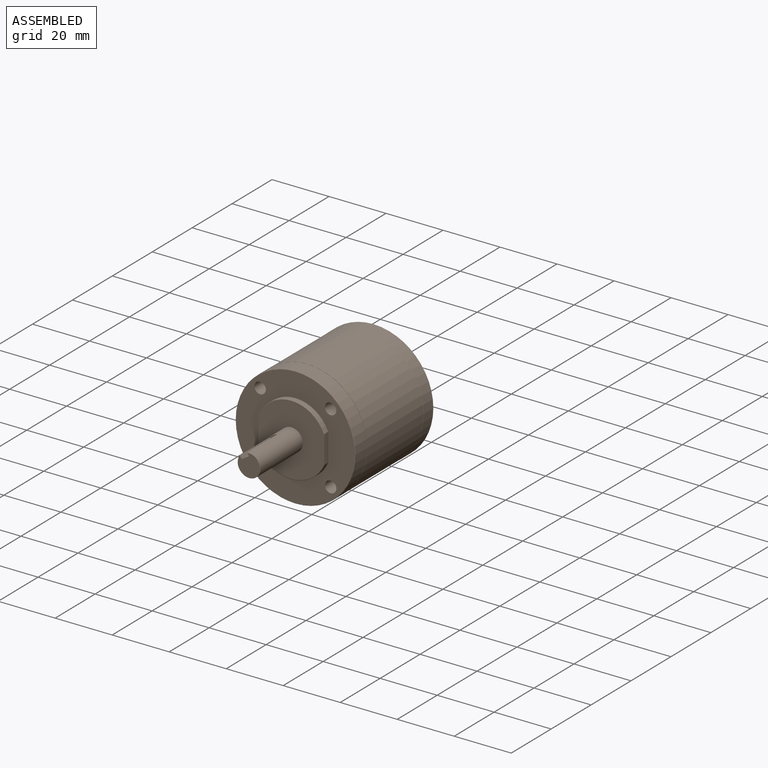
[diagram: assembled view]
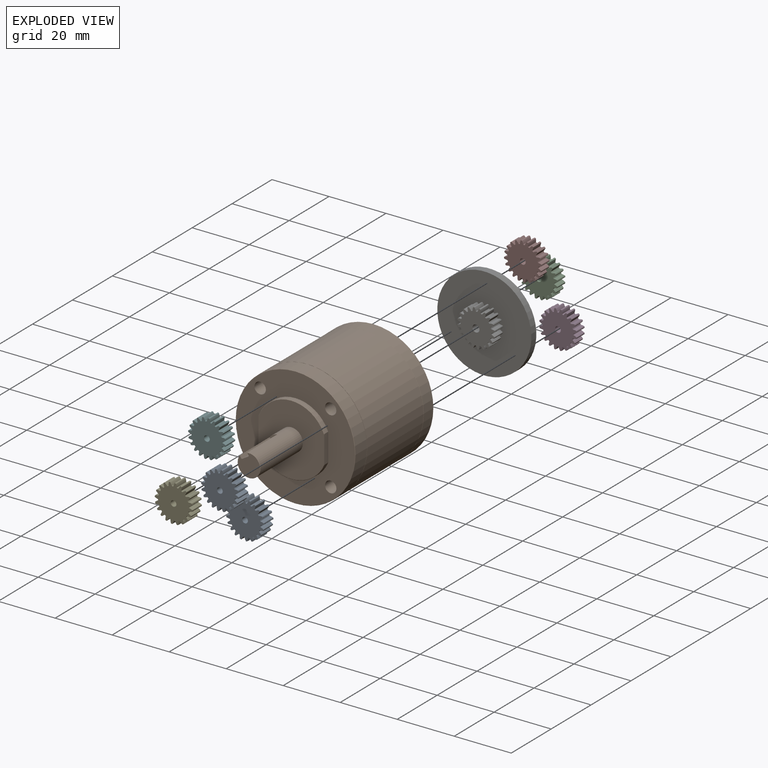
[diagram: exploded view]
GUIDED TOUR — MATED ASSEMBLY WITH SUBASSEMBLIES (Onshape document 576380d9e4b0a0decb21f6b3, AutoMate assembly 576380d9e4b0a0decb21f6b3_9d2c38b965b84d0261af29e2_1d52ac563497c145e975eeea_default)

This assembly has 12 component occurrences arranged in 9 top-level units: 8 individual components plus 1 subassembly (S0). The tour has two levels: first the top level, where each subassembly is treated as one rigid unit; then each subassembly is toured internally in its own section (nesting deeper than one subassembly level is flattened into its subassembly's section).

Components are labeled P0..P11 across the whole record; subassembly units are labeled S0..S0. A mate is a constraint between two units; its type names the relative motion it leaves free:
  CYLINDRICAL — leaves both rotation about and translation along the listed axis free,
  FASTENED — locks the two components together rigidly (no relative motion),
  PLANAR — leaves sliding in the plane through the listed point (normal = the listed direction) and rotation about that normal free,
  REVOLUTE — leaves rotation about the listed axis free (a hinge),
  SLIDER — leaves translation along the listed axis free.
Axis/direction vectors are unit vectors and 'through' points are millimeter coordinates, both in the assembly's world frame.

TOP-LEVEL MATES (between units; each subassembly's internal mates are listed in its own section)
  1. REVOLUTE "Revolute 5": P2 <-> P9, axis (0.000, -1.000, 0.000) through (-38.14, -15.95, -8.24) mm
  2. REVOLUTE "Revolute 4": P10 <-> P9, axis (0.000, -1.000, 0.000) through (-25.59, -15.95, 10.45) mm
  3. REVOLUTE "Revolute 2": S0 <-> P8, axis (0.000, 1.000, 0.000) through (-33.15, -23.75, 8.63) mm
  4. PLANAR "Planar 1": P9 <-> P11, direction (0.000, -1.000, 0.000) through (-26.46, -18.45, -2.52) mm
  5. CYLINDRICAL "Cylindrical 1": P9 <-> S0, axis (0.000, -1.000, 0.000) through (-26.46, -17.20, -2.52) mm
  6. REVOLUTE "Revolute 3": P11 <-> S0, axis (0.000, -1.000, 0.000) through (-15.32, -23.75, 4.17) mm
  7. REVOLUTE "Revolute 6": P4 <-> P9, axis (0.000, -1.000, 0.000) through (-15.67, -15.95, -9.77) mm
  8. REVOLUTE "Revolute 1": P0 <-> S0, axis (0.000, -1.000, 0.000) through (-19.77, -23.75, -13.67) mm
  9. REVOLUTE "Revolute 7": P6 <-> S0, axis (0.000, -1.000, 0.000) through (-37.61, -23.75, -9.21) mm

TOP-LEVEL ASSEMBLY ORDER
  1. S0 — the base component [order heuristic]
  2. P8 — core [order heuristic]
  3. P9 — core [order heuristic]
  4. P11 — core [order heuristic]
  5. P2 — core [order heuristic]
  6. P4 — core [order heuristic]
  7. P10 — core [order heuristic]
  8. P0 [order verified]
  9. P6 [order verified]
Order-tag legend:
  [order verified] — this step's position reverses a verified removal order: the component was checked to insert without passing through the ones already placed.
  [order heuristic] — the first 7 components form the assembly's core: parts whose collision-free extraction could not be verified, listed in mate-graph order.

Of the 12 component occurrences, 11 carry the full construction recipe — the FeatureScript program that regenerates the part's solid from scratch; the rest are supplied as boundary geometry only. Each toured unit is shown spotlighted twice — assembled, then exploded with a leader line back to its socket (green = recipe-attached component, orange = geometry-only, blue = subassembly unit; the rest desaturated gray).
NOTE — this tour is split across 3 documents so each fits a 32k-token context. This is document 1: the component sections continue in the remaining 2 documents, each repeating the header above.
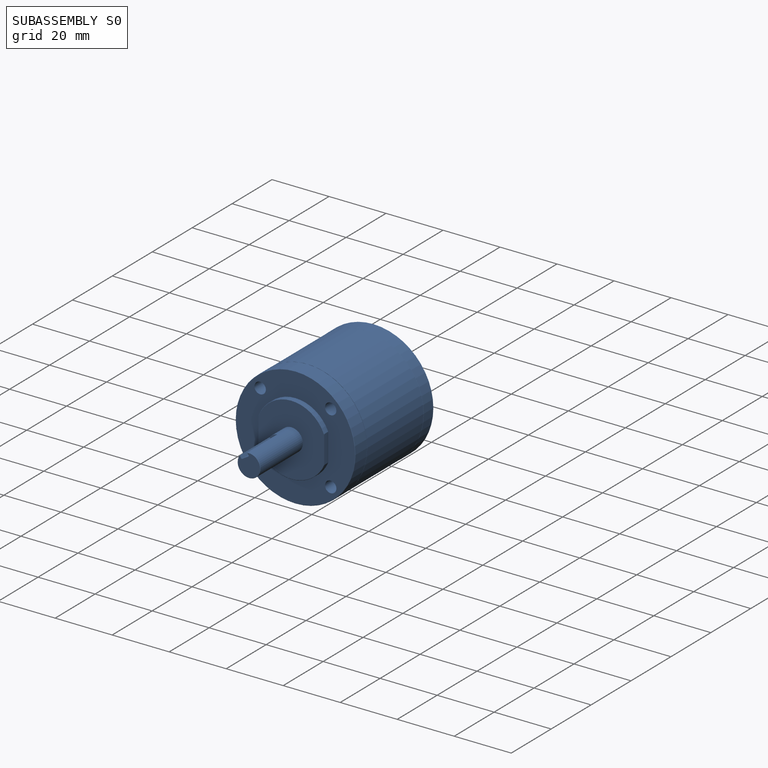
[diagram: subassembly S0 — assembled]
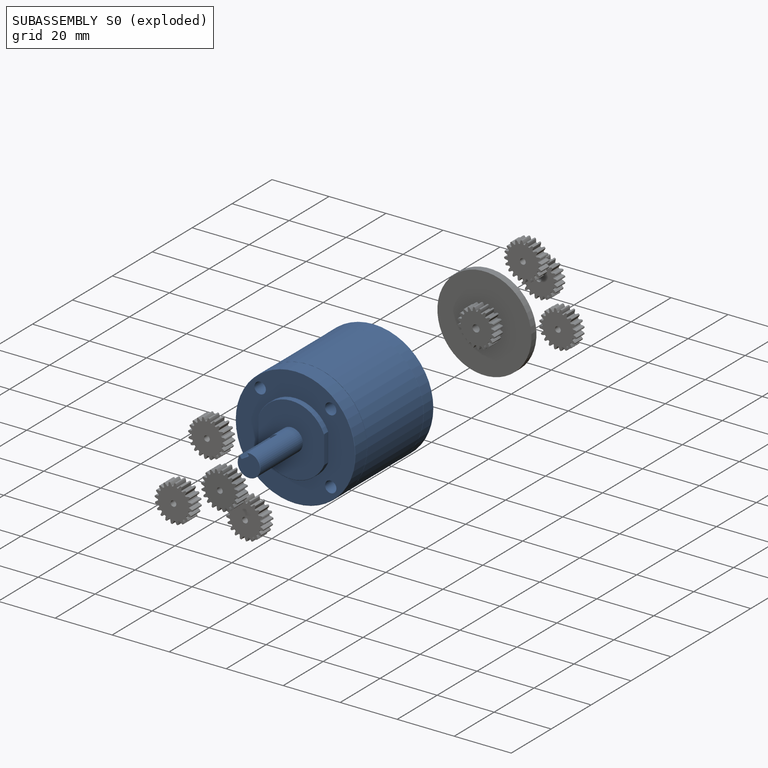
[diagram: subassembly S0 — exploded]
SUBASSEMBLY S0 — 4 components (P1, P3, P5, P7), of which 3 recipe-attached; toured below.
Held by: REVOLUTE mate "Revolute 2" to P8; CYLINDRICAL mate "Cylindrical 1" to P9; REVOLUTE mate "Revolute 3" to P11; REVOLUTE mate "Revolute 1" to P0; REVOLUTE mate "Revolute 7" to P6.
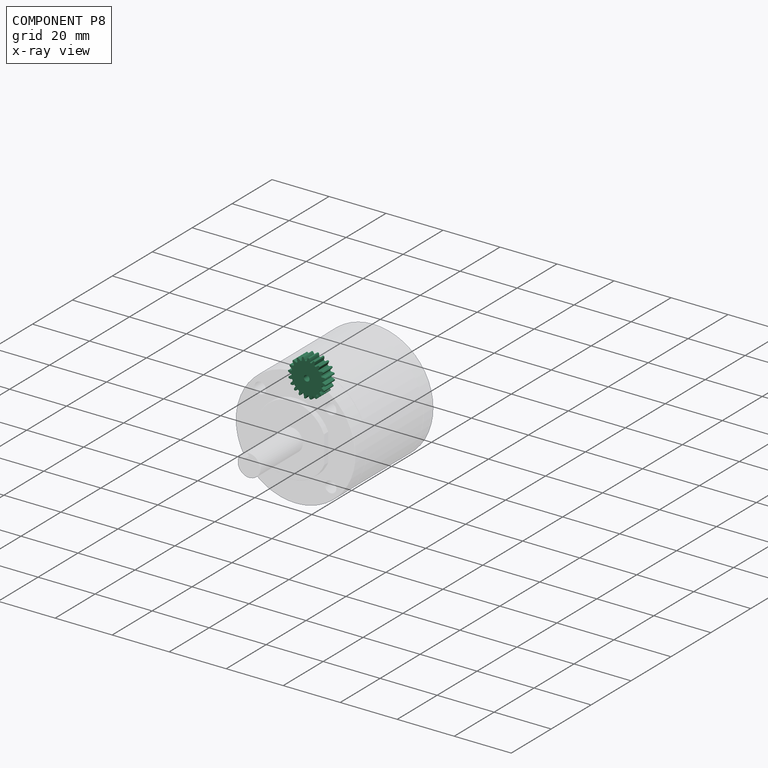
[diagram: component P8 — x-ray view]
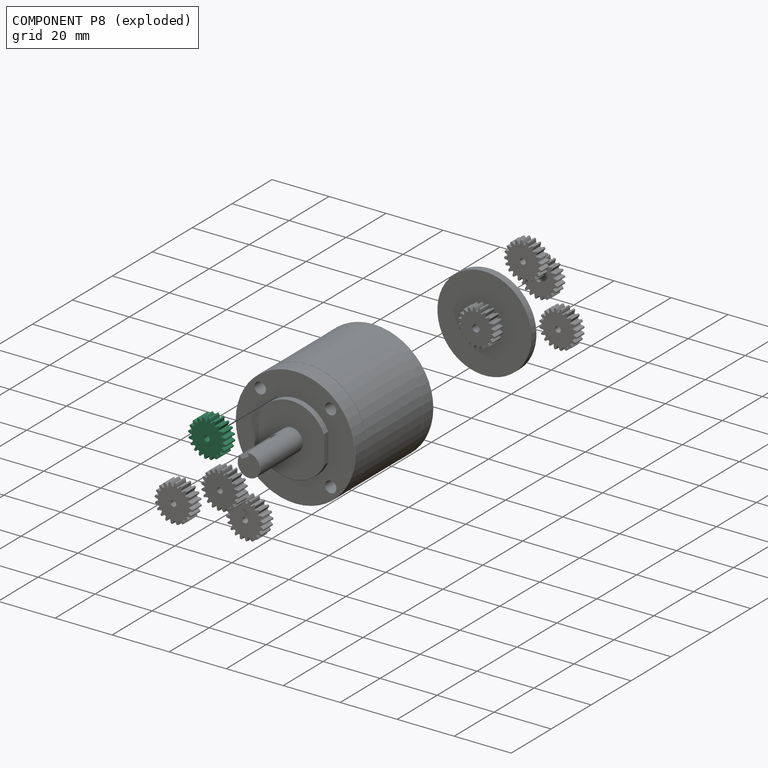
[diagram: component P8 — exploded]
COMPONENT P8 — same part as P0 (CADFS 00178052); its construction recipe is shown at P0.
Held by: REVOLUTE mate "Revolute 2" to P1.
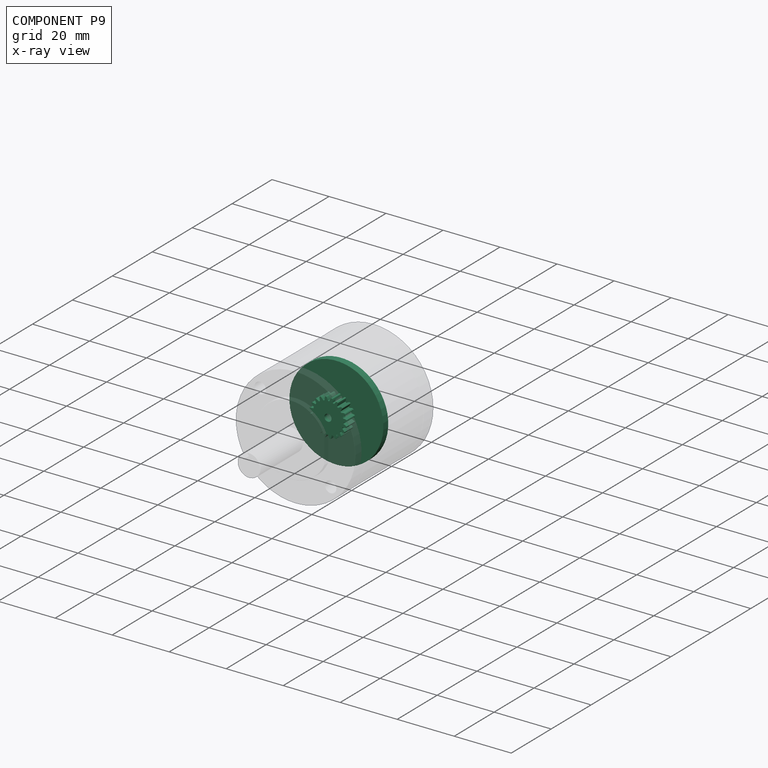
[diagram: component P9 — x-ray view]
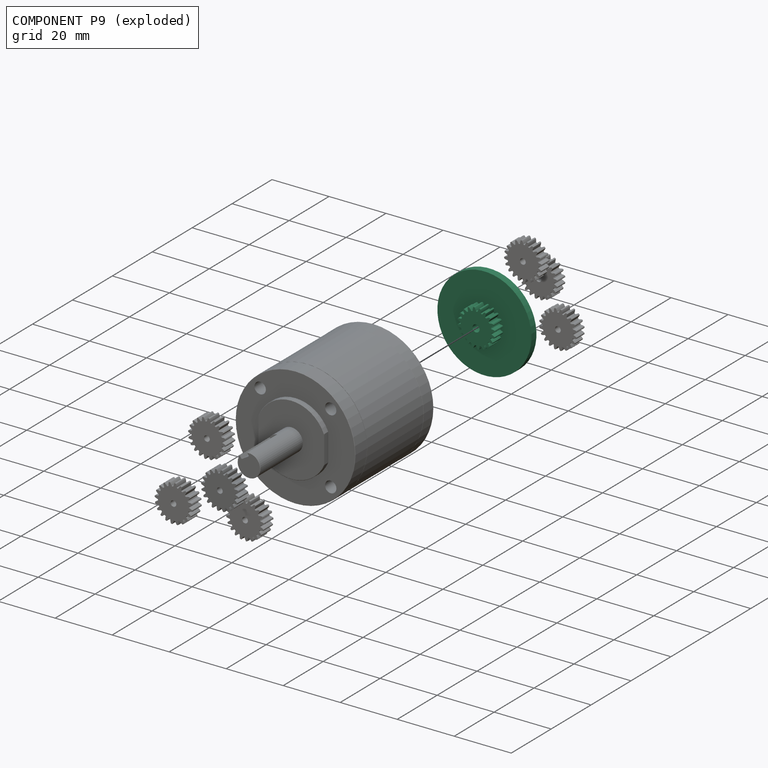
[diagram: component P9 — exploded]
COMPONENT P9 — recipe-attached (CADFS 00178049, mesh-verified: the recipe's output STEP matches this component's geometry to below the mesh-comparison resolution (tessellation chordal tolerance ~0.0718 mm)).
Held by: REVOLUTE mate "Revolute 5" to P2; REVOLUTE mate "Revolute 4" to P10; PLANAR mate "Planar 1" to P11; CYLINDRICAL mate "Cylindrical 1" to P1; REVOLUTE mate "Revolute 6" to P4.
Construction recipe (FeatureScript — the CAD program that rebuilds this solid; sketch coordinates are in the units given by the * unit suffixes, e.g. mm):

FeatureScript 1540;
import(path : "onshape/std/geometry.fs", version : "1540.0");
import(path : "onshape/std/common.fs", version : "1540.0");
const mm = millimeter;
const VERTEX = EntityType.VERTEX;
const EDGE = EntityType.EDGE;
const FACE = EntityType.FACE;
const BODY = EntityType.BODY;
function v(x, y){return vector(x, y);}
function OD(order){return orderDisambiguation(order);}
function OSD(set){return originalSetDisambiguation(set);}
function TD(topology){return topologyDisambiguation(topology);}
function TDD(query){return trueDependencyDisambiguation(query);}
function sQuery(a, b, c) {return sketchEntityQuery(a, b, c);}

annotation { "Feature Type Name" : "Feature", "Feature Type Description" : "" }
export const myFeature = defineFeature(function(context is Context, id is Id, definition is map)
    precondition{}
    {
        {
            var Q0;
            Q0=qCreatedBy(makeId("Front.planeOp"),FACE);
            var sketch = newSketch(context, id + "F0", { "sketchPlane" : qUnion([Q0])});
            skCircle(sketch, "E0", {"center": v(0, 0) * mm, "radius": 6 * mm, "construction": true});
            skCircle(sketch, "E1", {"center": v(0, 0) * mm, "radius": 5.4 * mm, "construction": true});
            skCircle(sketch, "E2", {"center": v(0, 0) * mm, "radius": 6.6 * mm, "construction": true});
            skLineSegment(sketch, "E3", {"start": v(0, 0) * mm, "end": v(0, 7.77) * mm, "construction": true});
            skPoint(sketch, "E4", {"position": v(0, 6) * mm});
            skLineSegment(sketch, "E5", {"start": v(0, 6) * mm, "end": v(-7.8, 6) * mm, "construction": true});
            skCircle(sketch, "E6.cCircle", {"center": v(0, 0) * mm, "radius": 7.77 * mm, "construction": true});
            skLineSegment(sketch, "E6.0", {"start": v(-0.61, 7.77) * mm, "end": v(0.61, 7.77) * mm, "construction": true});
            skLineSegment(sketch, "E6.1", {"start": v(0.61, 7.77) * mm, "end": v(1.82, 7.58) * mm, "construction": true});
            skLineSegment(sketch, "E6.2", {"start": v(1.82, 7.58) * mm, "end": v(2.98, 7.2) * mm, "construction": true});
            skLineSegment(sketch, "E6.3", {"start": v(2.98, 7.2) * mm, "end": v(4.07, 6.65) * mm, "construction": true});
            skLineSegment(sketch, "E6.4", {"start": v(4.07, 6.65) * mm, "end": v(5.06, 5.93) * mm, "construction": true});
            skLineSegment(sketch, "E6.5", {"start": v(5.06, 5.93) * mm, "end": v(5.93, 5.06) * mm, "construction": true});
            skLineSegment(sketch, "E6.6", {"start": v(5.93, 5.06) * mm, "end": v(6.65, 4.07) * mm, "construction": true});
            skLineSegment(sketch, "E6.7", {"start": v(6.65, 4.07) * mm, "end": v(7.2, 2.98) * mm, "construction": true});
            skLineSegment(sketch, "E6.8", {"start": v(7.2, 2.98) * mm, "end": v(7.58, 1.82) * mm, "construction": true});
            skLineSegment(sketch, "E6.9", {"start": v(7.58, 1.82) * mm, "end": v(7.77, 0.61) * mm, "construction": true});
            skLineSegment(sketch, "E6.10", {"start": v(7.77, 0.61) * mm, "end": v(7.77, -0.61) * mm, "construction": true});
            skLineSegment(sketch, "E6.11", {"start": v(7.77, -0.61) * mm, "end": v(7.58, -1.82) * mm, "construction": true});
            skLineSegment(sketch, "E6.12", {"start": v(7.58, -1.82) * mm, "end": v(7.2, -2.98) * mm, "construction": true});
            skLineSegment(sketch, "E6.13", {"start": v(7.2, -2.98) * mm, "end": v(6.65, -4.07) * mm, "construction": true});
            skLineSegment(sketch, "E6.14", {"start": v(6.65, -4.07) * mm, "end": v(5.93, -5.06) * mm, "construction": true});
            skLineSegment(sketch, "E6.15", {"start": v(5.93, -5.06) * mm, "end": v(5.06, -5.93) * mm, "construction": true});
            skLineSegment(sketch, "E6.16", {"start": v(5.06, -5.93) * mm, "end": v(4.07, -6.65) * mm, "construction": true});
            skLineSegment(sketch, "E6.17", {"start": v(4.07, -6.65) * mm, "end": v(2.98, -7.2) * mm, "construction": true});
            skLineSegment(sketch, "E6.18", {"start": v(2.98, -7.2) * mm, "end": v(1.82, -7.58) * mm, "construction": true});
            skLineSegment(sketch, "E6.19", {"start": v(1.82, -7.58) * mm, "end": v(0.61, -7.77) * mm, "construction": true});
            skLineSegment(sketch, "E6.20", {"start": v(0.61, -7.77) * mm, "end": v(-0.61, -7.77) * mm, "construction": true});
            skLineSegment(sketch, "E6.21", {"start": v(-0.61, -7.77) * mm, "end": v(-1.82, -7.58) * mm, "construction": true});
            skLineSegment(sketch, "E6.22", {"start": v(-1.82, -7.58) * mm, "end": v(-2.98, -7.2) * mm, "construction": true});
            skLineSegment(sketch, "E6.23", {"start": v(-2.98, -7.2) * mm, "end": v(-4.07, -6.65) * mm, "construction": true});
            skLineSegment(sketch, "E6.24", {"start": v(-4.07, -6.65) * mm, "end": v(-5.06, -5.93) * mm, "construction": true});
            skLineSegment(sketch, "E6.25", {"start": v(-5.06, -5.93) * mm, "end": v(-5.93, -5.06) * mm, "construction": true});
            skLineSegment(sketch, "E6.26", {"start": v(-5.93, -5.06) * mm, "end": v(-6.65, -4.07) * mm, "construction": true});
            skLineSegment(sketch, "E6.27", {"start": v(-6.65, -4.07) * mm, "end": v(-7.2, -2.98) * mm, "construction": true});
            skLineSegment(sketch, "E6.28", {"start": v(-7.2, -2.98) * mm, "end": v(-7.58, -1.82) * mm, "construction": true});
            skLineSegment(sketch, "E6.29", {"start": v(-7.58, -1.82) * mm, "end": v(-7.77, -0.61) * mm, "construction": true});
            skLineSegment(sketch, "E6.30", {"start": v(-7.77, -0.61) * mm, "end": v(-7.77, 0.61) * mm, "construction": true});
            skLineSegment(sketch, "E6.31", {"start": v(-7.77, 0.61) * mm, "end": v(-7.58, 1.82) * mm, "construction": true});
            skLineSegment(sketch, "E6.32", {"start": v(-7.58, 1.82) * mm, "end": v(-7.2, 2.98) * mm, "construction": true});
            skLineSegment(sketch, "E6.33", {"start": v(-7.2, 2.98) * mm, "end": v(-6.65, 4.07) * mm, "construction": true});
            skLineSegment(sketch, "E6.34", {"start": v(-6.65, 4.07) * mm, "end": v(-5.93, 5.06) * mm, "construction": true});
            skLineSegment(sketch, "E6.35", {"start": v(-5.93, 5.06) * mm, "end": v(-5.06, 5.93) * mm, "construction": true});
            skLineSegment(sketch, "E6.36", {"start": v(-5.06, 5.93) * mm, "end": v(-4.07, 6.65) * mm, "construction": true});
            skLineSegment(sketch, "E6.37", {"start": v(-4.07, 6.65) * mm, "end": v(-2.98, 7.2) * mm, "construction": true});
            skLineSegment(sketch, "E6.38", {"start": v(-2.98, 7.2) * mm, "end": v(-1.82, 7.58) * mm, "construction": true});
            skLineSegment(sketch, "E6.39", {"start": v(-1.82, 7.58) * mm, "end": v(-0.61, 7.77) * mm, "construction": true});
            skPoint(sketch, "E6.0.midPoint", {"position": v(0, 7.77) * mm});
            skLineSegment(sketch, "E7.0", {"start": v(0, 7.77) * mm, "end": v(1.22, 7.68) * mm, "construction": true});
            skLineSegment(sketch, "E7.1", {"start": v(1.22, 7.68) * mm, "end": v(2.4, 7.4) * mm, "construction": true});
            skLineSegment(sketch, "E7.2", {"start": v(2.4, 7.4) * mm, "end": v(3.53, 6.93) * mm, "construction": true});
            skLineSegment(sketch, "E7.3", {"start": v(3.53, 6.93) * mm, "end": v(4.57, 6.29) * mm, "construction": true});
            skLineSegment(sketch, "E7.4", {"start": v(4.57, 6.29) * mm, "end": v(5.5, 5.5) * mm, "construction": true});
            skLineSegment(sketch, "E7.5", {"start": v(5.5, 5.5) * mm, "end": v(6.29, 4.57) * mm, "construction": true});
            skLineSegment(sketch, "E7.6", {"start": v(6.29, 4.57) * mm, "end": v(6.93, 3.53) * mm, "construction": true});
            skLineSegment(sketch, "E7.7", {"start": v(6.93, 3.53) * mm, "end": v(7.4, 2.4) * mm, "construction": true});
            skLineSegment(sketch, "E7.8", {"start": v(7.4, 2.4) * mm, "end": v(7.68, 1.22) * mm, "construction": true});
            skLineSegment(sketch, "E7.9", {"start": v(7.68, 1.22) * mm, "end": v(7.77, 0) * mm, "construction": true});
            skLineSegment(sketch, "E7.10", {"start": v(7.77, 0) * mm, "end": v(7.68, -1.22) * mm, "construction": true});
            skLineSegment(sketch, "E7.11", {"start": v(7.68, -1.22) * mm, "end": v(7.4, -2.4) * mm, "construction": true});
            skLineSegment(sketch, "E7.12", {"start": v(7.4, -2.4) * mm, "end": v(6.93, -3.53) * mm, "construction": true});
            skLineSegment(sketch, "E7.13", {"start": v(6.93, -3.53) * mm, "end": v(6.29, -4.57) * mm, "construction": true});
            skLineSegment(sketch, "E7.14", {"start": v(6.29, -4.57) * mm, "end": v(5.5, -5.5) * mm, "construction": true});
            skLineSegment(sketch, "E7.15", {"start": v(5.5, -5.5) * mm, "end": v(4.57, -6.29) * mm, "construction": true});
            skLineSegment(sketch, "E7.16", {"start": v(4.57, -6.29) * mm, "end": v(3.53, -6.93) * mm, "construction": true});
            skLineSegment(sketch, "E7.17", {"start": v(3.53, -6.93) * mm, "end": v(2.4, -7.4) * mm, "construction": true});
            skLineSegment(sketch, "E7.18", {"start": v(2.4, -7.4) * mm, "end": v(1.22, -7.68) * mm, "construction": true});
            skLineSegment(sketch, "E7.19", {"start": v(1.22, -7.68) * mm, "end": v(0, -7.77) * mm, "construction": true});
            skLineSegment(sketch, "E7.20", {"start": v(0, -7.77) * mm, "end": v(-1.22, -7.68) * mm, "construction": true});
            skLineSegment(sketch, "E7.21", {"start": v(-1.22, -7.68) * mm, "end": v(-2.4, -7.4) * mm, "construction": true});
            skLineSegment(sketch, "E7.22", {"start": v(-2.4, -7.4) * mm, "end": v(-3.53, -6.93) * mm, "construction": true});
            skLineSegment(sketch, "E7.23", {"start": v(-3.53, -6.93) * mm, "end": v(-4.57, -6.29) * mm, "construction": true});
            skLineSegment(sketch, "E7.24", {"start": v(-4.57, -6.29) * mm, "end": v(-5.5, -5.5) * mm, "construction": true});
            skLineSegment(sketch, "E7.25", {"start": v(-5.5, -5.5) * mm, "end": v(-6.29, -4.57) * mm, "construction": true});
            skLineSegment(sketch, "E7.26", {"start": v(-6.29, -4.57) * mm, "end": v(-6.93, -3.53) * mm, "construction": true});
            skLineSegment(sketch, "E7.27", {"start": v(-6.93, -3.53) * mm, "end": v(-7.4, -2.4) * mm, "construction": true});
            skLineSegment(sketch, "E7.28", {"start": v(-7.4, -2.4) * mm, "end": v(-7.68, -1.22) * mm, "construction": true});
            skLineSegment(sketch, "E7.29", {"start": v(-7.68, -1.22) * mm, "end": v(-7.77, 0) * mm, "construction": true});
            skLineSegment(sketch, "E7.30", {"start": v(-7.77, 0) * mm, "end": v(-7.68, 1.22) * mm, "construction": true});
            skLineSegment(sketch, "E7.31", {"start": v(-7.68, 1.22) * mm, "end": v(-7.4, 2.4) * mm, "construction": true});
            skLineSegment(sketch, "E7.32", {"start": v(-7.4, 2.4) * mm, "end": v(-6.93, 3.53) * mm, "construction": true});
            skLineSegment(sketch, "E7.33", {"start": v(-6.93, 3.53) * mm, "end": v(-6.29, 4.57) * mm, "construction": true});
            skLineSegment(sketch, "E7.34", {"start": v(-6.29, 4.57) * mm, "end": v(-5.5, 5.5) * mm, "construction": true});
            skLineSegment(sketch, "E7.35", {"start": v(-5.5, 5.5) * mm, "end": v(-4.57, 6.29) * mm, "construction": true});
            skLineSegment(sketch, "E7.36", {"start": v(-4.57, 6.29) * mm, "end": v(-3.53, 6.93) * mm, "construction": true});
            skLineSegment(sketch, "E7.37", {"start": v(-3.53, 6.93) * mm, "end": v(-2.4, 7.4) * mm, "construction": true});
            skLineSegment(sketch, "E7.38", {"start": v(-2.4, 7.4) * mm, "end": v(-1.22, 7.68) * mm, "construction": true});
            skLineSegment(sketch, "E7.39", {"start": v(-1.22, 7.68) * mm, "end": v(0, 7.77) * mm, "construction": true});
            skLineSegment(sketch, "E8", {"start": v(0, 0) * mm, "end": v(-0.61, 7.77) * mm, "construction": true});
            skLineSegment(sketch, "E9", {"start": v(0, 6) * mm, "end": v(-7.35, 3.32) * mm, "construction": true});
            skCircle(sketch, "E10", {"center": v(0, 6) * mm, "radius": 3.6 * mm, "construction": true});
            skPoint(sketch, "E11", {"position": v(-3.38, 4.77) * mm});
            skCircle(sketch, "E12", {"center": v(-3.38, 4.77) * mm, "radius": 3.6 * mm, "construction": true});
            skArc(sketch, "E13", {"start": v(-0.24, 6.53) * mm, "mid": v(0, 6.02) * mm, "end": v(0.14, 5.49) * mm});
            skArc(sketch, "E14.MirrorCS", {"start": v(-0.78, 6.49) * mm, "mid": v(-0.93, 5.95) * mm, "end": v(-1, 5.4) * mm});
            skArc(sketch, "E15", {"start": v(-0.68, 6.56) * mm, "mid": v(-0.52, 6.58) * mm, "end": v(-0.35, 6.6) * mm});
            skArc(sketch, "E16", {"start": v(-1.1, 5.29) * mm, "mid": v(0.42, -5.38) * mm, "end": v(0.26, 5.4) * mm});
            skPoint(sketch, "E17.visualSharp", {"position": v(-1, 5.3) * mm});
            skArc(sketch, "E17.filletArc", {"start": v(-1.1, 5.29) * mm, "mid": v(-1.03, 5.33) * mm, "end": v(-1, 5.4) * mm});
            skPoint(sketch, "E18.visualSharp", {"position": v(0.16, 5.4) * mm});
            skArc(sketch, "E18.filletArc", {"start": v(0.14, 5.49) * mm, "mid": v(0.18, 5.42) * mm, "end": v(0.26, 5.4) * mm});
            skPoint(sketch, "E19.visualSharp", {"position": v(-0.76, 6.56) * mm});
            skArc(sketch, "E19.filletArc", {"start": v(-0.68, 6.56) * mm, "mid": v(-0.74, 6.54) * mm, "end": v(-0.78, 6.49) * mm});
            skPoint(sketch, "E20.visualSharp", {"position": v(-0.28, 6.6) * mm});
            skArc(sketch, "E20.filletArc", {"start": v(-0.24, 6.53) * mm, "mid": v(-0.29, 6.58) * mm, "end": v(-0.35, 6.6) * mm});
            skLineSegment(sketch, "E21", {"start": v(0, 0) * mm, "end": v(-1.44, 6.92) * mm, "construction": true});
            skPoint(sketch, "E22.1.0", {"position": v(-1.51, 5.18) * mm});
            skPoint(sketch, "E22.1.1", {"position": v(-1.85, 5.7) * mm});
            skArc(sketch, "E22.1.2", {"start": v(-2.25, 6.13) * mm, "mid": v(-1.87, 5.73) * mm, "end": v(-1.56, 5.27) * mm});
            skArc(sketch, "E22.1.3", {"start": v(-2.68, 6.03) * mm, "mid": v(-2.53, 6.1) * mm, "end": v(-2.37, 6.16) * mm});
            skPoint(sketch, "E22.1.4", {"position": v(-2.3, 6.18) * mm});
            skPoint(sketch, "E22.1.5", {"position": v(-2.6, 4.74) * mm});
            skArc(sketch, "E22.1.6", {"start": v(-2.75, 5.93) * mm, "mid": v(-2.73, 5.37) * mm, "end": v(-2.62, 4.83) * mm});
            skPoint(sketch, "E22.1.7", {"position": v(-2.74, 6) * mm});
            skArc(sketch, "E22.1.8", {"start": v(-1.56, 5.27) * mm, "mid": v(-1.5, 5.21) * mm, "end": v(-1.42, 5.2) * mm});
            skArc(sketch, "E22.1.9", {"start": v(-2.68, 6.03) * mm, "mid": v(-2.73, 6) * mm, "end": v(-2.75, 5.93) * mm});
            skArc(sketch, "E22.1.10", {"start": v(-2.68, 4.69) * mm, "mid": v(-2.63, 4.75) * mm, "end": v(-2.62, 4.83) * mm});
            skArc(sketch, "E22.1.11", {"start": v(-2.25, 6.13) * mm, "mid": v(-2.3, 6.16) * mm, "end": v(-2.37, 6.16) * mm});
            skPoint(sketch, "E22.2.0", {"position": v(-3.04, 4.46) * mm});
            skPoint(sketch, "E22.2.1", {"position": v(-3.53, 4.85) * mm});
            skArc(sketch, "E22.2.2", {"start": v(-4.03, 5.14) * mm, "mid": v(-3.55, 4.87) * mm, "end": v(-3.11, 4.53) * mm});
            skArc(sketch, "E22.2.3", {"start": v(-4.4, 4.91) * mm, "mid": v(-4.29, 5.02) * mm, "end": v(-4.16, 5.12) * mm});
            skPoint(sketch, "E22.2.4", {"position": v(-4.1, 5.17) * mm});
            skPoint(sketch, "E22.2.5", {"position": v(-3.93, 3.7) * mm});
            skArc(sketch, "E22.2.6", {"start": v(-4.45, 4.79) * mm, "mid": v(-4.25, 4.27) * mm, "end": v(-3.98, 3.78) * mm});
            skPoint(sketch, "E22.2.7", {"position": v(-4.46, 4.86) * mm});
            skArc(sketch, "E22.2.8", {"start": v(-3.11, 4.53) * mm, "mid": v(-3.04, 4.5) * mm, "end": v(-2.96, 4.51) * mm});
            skArc(sketch, "E22.2.9", {"start": v(-4.4, 4.91) * mm, "mid": v(-4.45, 4.85) * mm, "end": v(-4.45, 4.79) * mm});
            skArc(sketch, "E22.2.10", {"start": v(-4, 3.63) * mm, "mid": v(-3.96, 3.7) * mm, "end": v(-3.98, 3.78) * mm});
            skArc(sketch, "E22.2.11", {"start": v(-4.03, 5.14) * mm, "mid": v(-4.1, 5.15) * mm, "end": v(-4.16, 5.12) * mm});
            skPoint(sketch, "E22.3.0", {"position": v(-4.27, 3.3) * mm});
            skPoint(sketch, "E22.3.1", {"position": v(-4.85, 3.53) * mm});
            skArc(sketch, "E22.3.2", {"start": v(-5.43, 3.64) * mm, "mid": v(-4.88, 3.53) * mm, "end": v(-4.36, 3.34) * mm});
            skArc(sketch, "E22.3.3", {"start": v(-5.71, 3.3) * mm, "mid": v(-5.63, 3.45) * mm, "end": v(-5.54, 3.59) * mm});
            skPoint(sketch, "E22.3.4", {"position": v(-5.5, 3.65) * mm});
            skPoint(sketch, "E22.3.5", {"position": v(-4.88, 2.3) * mm});
            skArc(sketch, "E22.3.6", {"start": v(-5.7, 3.18) * mm, "mid": v(-5.36, 2.74) * mm, "end": v(-4.96, 2.36) * mm});
            skPoint(sketch, "E22.3.7", {"position": v(-5.75, 3.24) * mm});
            skArc(sketch, "E22.3.8", {"start": v(-4.36, 3.34) * mm, "mid": v(-4.28, 3.34) * mm, "end": v(-4.21, 3.38) * mm});
            skArc(sketch, "E22.3.9", {"start": v(-5.71, 3.3) * mm, "mid": v(-5.73, 3.24) * mm, "end": v(-5.7, 3.18) * mm});
            skArc(sketch, "E22.3.10", {"start": v(-4.92, 2.22) * mm, "mid": v(-4.92, 2.3) * mm, "end": v(-4.96, 2.36) * mm});
            skArc(sketch, "E22.3.11", {"start": v(-5.43, 3.64) * mm, "mid": v(-5.5, 3.63) * mm, "end": v(-5.54, 3.59) * mm});
            skPoint(sketch, "E22.4.0", {"position": v(-5.08, 1.82) * mm});
            skPoint(sketch, "E22.4.1", {"position": v(-5.7, 1.85) * mm});
            skArc(sketch, "E22.4.2", {"start": v(-6.28, 1.79) * mm, "mid": v(-5.73, 1.85) * mm, "end": v(-5.18, 1.83) * mm});
            skArc(sketch, "E22.4.3", {"start": v(-6.45, 1.38) * mm, "mid": v(-6.42, 1.54) * mm, "end": v(-6.38, 1.7) * mm});
            skPoint(sketch, "E22.4.4", {"position": v(-6.36, 1.77) * mm});
            skPoint(sketch, "E22.4.5", {"position": v(-5.36, 0.68) * mm});
            skArc(sketch, "E22.4.6", {"start": v(-6.41, 1.26) * mm, "mid": v(-5.95, 0.95) * mm, "end": v(-5.44, 0.72) * mm});
            skPoint(sketch, "E22.4.7", {"position": v(-6.47, 1.3) * mm});
            skArc(sketch, "E22.4.8", {"start": v(-5.18, 1.83) * mm, "mid": v(-5.1, 1.85) * mm, "end": v(-5.05, 1.91) * mm});
            skArc(sketch, "E22.4.9", {"start": v(-6.45, 1.38) * mm, "mid": v(-6.45, 1.31) * mm, "end": v(-6.41, 1.26) * mm});
            skArc(sketch, "E22.4.10", {"start": v(-5.37, 0.6) * mm, "mid": v(-5.38, 0.67) * mm, "end": v(-5.44, 0.72) * mm});
            skArc(sketch, "E22.4.11", {"start": v(-6.28, 1.79) * mm, "mid": v(-6.34, 1.76) * mm, "end": v(-6.38, 1.7) * mm});
            skPoint(sketch, "E22.5.0", {"position": v(-5.4, 0.16) * mm});
            skPoint(sketch, "E22.5.1", {"position": v(-6, 0) * mm});
            skArc(sketch, "E22.5.2", {"start": v(-6.53, -0.24) * mm, "mid": v(-6.02, 0) * mm, "end": v(-5.49, 0.14) * mm});
            skArc(sketch, "E22.5.3", {"start": v(-6.56, -0.68) * mm, "mid": v(-6.58, -0.52) * mm, "end": v(-6.6, -0.35) * mm});
            skPoint(sketch, "E22.5.4", {"position": v(-6.6, -0.28) * mm});
            skPoint(sketch, "E22.5.5", {"position": v(-5.3, -1) * mm});
            skArc(sketch, "E22.5.6", {"start": v(-6.49, -0.78) * mm, "mid": v(-5.95, -0.93) * mm, "end": v(-5.4, -1) * mm});
            skPoint(sketch, "E22.5.7", {"position": v(-6.56, -0.76) * mm});
            skArc(sketch, "E22.5.8", {"start": v(-5.49, 0.14) * mm, "mid": v(-5.42, 0.18) * mm, "end": v(-5.4, 0.26) * mm});
            skArc(sketch, "E22.5.9", {"start": v(-6.56, -0.68) * mm, "mid": v(-6.54, -0.74) * mm, "end": v(-6.49, -0.78) * mm});
            skArc(sketch, "E22.5.10", {"start": v(-5.29, -1.1) * mm, "mid": v(-5.33, -1.03) * mm, "end": v(-5.4, -1) * mm});
            skArc(sketch, "E22.5.11", {"start": v(-6.53, -0.24) * mm, "mid": v(-6.58, -0.29) * mm, "end": v(-6.6, -0.35) * mm});
            skPoint(sketch, "E22.6.0", {"position": v(-5.18, -1.51) * mm});
            skPoint(sketch, "E22.6.1", {"position": v(-5.7, -1.85) * mm});
            skArc(sketch, "E22.6.2", {"start": v(-6.13, -2.25) * mm, "mid": v(-5.73, -1.87) * mm, "end": v(-5.27, -1.56) * mm});
            skArc(sketch, "E22.6.3", {"start": v(-6.03, -2.68) * mm, "mid": v(-6.1, -2.53) * mm, "end": v(-6.16, -2.37) * mm});
            skPoint(sketch, "E22.6.4", {"position": v(-6.18, -2.3) * mm});
            skPoint(sketch, "E22.6.5", {"position": v(-4.74, -2.6) * mm});
            skArc(sketch, "E22.6.6", {"start": v(-5.93, -2.75) * mm, "mid": v(-5.37, -2.73) * mm, "end": v(-4.83, -2.62) * mm});
            skPoint(sketch, "E22.6.7", {"position": v(-6, -2.74) * mm});
            skArc(sketch, "E22.6.8", {"start": v(-5.27, -1.56) * mm, "mid": v(-5.21, -1.5) * mm, "end": v(-5.2, -1.42) * mm});
            skArc(sketch, "E22.6.9", {"start": v(-6.03, -2.68) * mm, "mid": v(-6, -2.73) * mm, "end": v(-5.93, -2.75) * mm});
            skArc(sketch, "E22.6.10", {"start": v(-4.69, -2.68) * mm, "mid": v(-4.75, -2.63) * mm, "end": v(-4.83, -2.62) * mm});
            skArc(sketch, "E22.6.11", {"start": v(-6.13, -2.25) * mm, "mid": v(-6.16, -2.3) * mm, "end": v(-6.16, -2.37) * mm});
            skPoint(sketch, "E22.7.0", {"position": v(-4.46, -3.04) * mm});
            skPoint(sketch, "E22.7.1", {"position": v(-4.85, -3.53) * mm});
            skArc(sketch, "E22.7.2", {"start": v(-5.14, -4.03) * mm, "mid": v(-4.87, -3.55) * mm, "end": v(-4.53, -3.11) * mm});
            skArc(sketch, "E22.7.3", {"start": v(-4.91, -4.4) * mm, "mid": v(-5.02, -4.29) * mm, "end": v(-5.12, -4.16) * mm});
            skPoint(sketch, "E22.7.4", {"position": v(-5.17, -4.1) * mm});
            skPoint(sketch, "E22.7.5", {"position": v(-3.7, -3.93) * mm});
            skArc(sketch, "E22.7.6", {"start": v(-4.79, -4.45) * mm, "mid": v(-4.27, -4.25) * mm, "end": v(-3.78, -3.98) * mm});
            skPoint(sketch, "E22.7.7", {"position": v(-4.86, -4.46) * mm});
            skArc(sketch, "E22.7.8", {"start": v(-4.53, -3.11) * mm, "mid": v(-4.5, -3.04) * mm, "end": v(-4.51, -2.96) * mm});
            skArc(sketch, "E22.7.9", {"start": v(-4.91, -4.4) * mm, "mid": v(-4.85, -4.45) * mm, "end": v(-4.79, -4.45) * mm});
            skArc(sketch, "E22.7.10", {"start": v(-3.63, -4) * mm, "mid": v(-3.7, -3.96) * mm, "end": v(-3.78, -3.98) * mm});
            skArc(sketch, "E22.7.11", {"start": v(-5.14, -4.03) * mm, "mid": v(-5.15, -4.1) * mm, "end": v(-5.12, -4.16) * mm});
            skPoint(sketch, "E22.8.0", {"position": v(-3.3, -4.27) * mm});
            skPoint(sketch, "E22.8.1", {"position": v(-3.53, -4.85) * mm});
            skArc(sketch, "E22.8.2", {"start": v(-3.64, -5.43) * mm, "mid": v(-3.53, -4.88) * mm, "end": v(-3.34, -4.36) * mm});
            skArc(sketch, "E22.8.3", {"start": v(-3.3, -5.71) * mm, "mid": v(-3.45, -5.63) * mm, "end": v(-3.59, -5.54) * mm});
            skPoint(sketch, "E22.8.4", {"position": v(-3.65, -5.5) * mm});
            skPoint(sketch, "E22.8.5", {"position": v(-2.3, -4.88) * mm});
            skArc(sketch, "E22.8.6", {"start": v(-3.18, -5.7) * mm, "mid": v(-2.74, -5.36) * mm, "end": v(-2.36, -4.96) * mm});
            skPoint(sketch, "E22.8.7", {"position": v(-3.24, -5.75) * mm});
            skArc(sketch, "E22.8.8", {"start": v(-3.34, -4.36) * mm, "mid": v(-3.34, -4.28) * mm, "end": v(-3.38, -4.21) * mm});
            skArc(sketch, "E22.8.9", {"start": v(-3.3, -5.71) * mm, "mid": v(-3.24, -5.73) * mm, "end": v(-3.18, -5.7) * mm});
            skArc(sketch, "E22.8.10", {"start": v(-2.22, -4.92) * mm, "mid": v(-2.3, -4.92) * mm, "end": v(-2.36, -4.96) * mm});
            skArc(sketch, "E22.8.11", {"start": v(-3.64, -5.43) * mm, "mid": v(-3.63, -5.5) * mm, "end": v(-3.59, -5.54) * mm});
            skPoint(sketch, "E22.9.0", {"position": v(-1.82, -5.08) * mm});
            skPoint(sketch, "E22.9.1", {"position": v(-1.85, -5.7) * mm});
            skArc(sketch, "E22.9.2", {"start": v(-1.79, -6.28) * mm, "mid": v(-1.85, -5.73) * mm, "end": v(-1.83, -5.18) * mm});
            skArc(sketch, "E22.9.3", {"start": v(-1.38, -6.45) * mm, "mid": v(-1.54, -6.42) * mm, "end": v(-1.7, -6.38) * mm});
            skPoint(sketch, "E22.9.4", {"position": v(-1.77, -6.36) * mm});
            skPoint(sketch, "E22.9.5", {"position": v(-0.68, -5.36) * mm});
            skArc(sketch, "E22.9.6", {"start": v(-1.26, -6.41) * mm, "mid": v(-0.95, -5.95) * mm, "end": v(-0.72, -5.44) * mm});
            skPoint(sketch, "E22.9.7", {"position": v(-1.3, -6.47) * mm});
            skArc(sketch, "E22.9.8", {"start": v(-1.83, -5.18) * mm, "mid": v(-1.85, -5.1) * mm, "end": v(-1.91, -5.05) * mm});
            skArc(sketch, "E22.9.9", {"start": v(-1.38, -6.45) * mm, "mid": v(-1.31, -6.45) * mm, "end": v(-1.26, -6.41) * mm});
            skArc(sketch, "E22.9.10", {"start": v(-0.6, -5.37) * mm, "mid": v(-0.67, -5.38) * mm, "end": v(-0.72, -5.44) * mm});
            skArc(sketch, "E22.9.11", {"start": v(-1.79, -6.28) * mm, "mid": v(-1.76, -6.34) * mm, "end": v(-1.7, -6.38) * mm});
            skPoint(sketch, "E22.10.0", {"position": v(-0.16, -5.4) * mm});
            skPoint(sketch, "E22.10.1", {"position": v(0, -6) * mm});
            skArc(sketch, "E22.10.2", {"start": v(0.24, -6.53) * mm, "mid": v(0, -6.02) * mm, "end": v(-0.14, -5.49) * mm});
            skArc(sketch, "E22.10.3", {"start": v(0.68, -6.56) * mm, "mid": v(0.52, -6.58) * mm, "end": v(0.35, -6.6) * mm});
            skPoint(sketch, "E22.10.4", {"position": v(0.28, -6.6) * mm});
            skPoint(sketch, "E22.10.5", {"position": v(1, -5.3) * mm});
            skArc(sketch, "E22.10.6", {"start": v(0.78, -6.49) * mm, "mid": v(0.93, -5.95) * mm, "end": v(1, -5.4) * mm});
            skPoint(sketch, "E22.10.7", {"position": v(0.76, -6.56) * mm});
            skArc(sketch, "E22.10.8", {"start": v(-0.14, -5.49) * mm, "mid": v(-0.18, -5.42) * mm, "end": v(-0.26, -5.4) * mm});
            skArc(sketch, "E22.10.9", {"start": v(0.68, -6.56) * mm, "mid": v(0.74, -6.54) * mm, "end": v(0.78, -6.49) * mm});
            skArc(sketch, "E22.10.10", {"start": v(1.1, -5.29) * mm, "mid": v(1.03, -5.33) * mm, "end": v(1, -5.4) * mm});
            skArc(sketch, "E22.10.11", {"start": v(0.24, -6.53) * mm, "mid": v(0.29, -6.58) * mm, "end": v(0.35, -6.6) * mm});
            skPoint(sketch, "E22.11.0", {"position": v(1.51, -5.18) * mm});
            skPoint(sketch, "E22.11.1", {"position": v(1.85, -5.7) * mm});
            skArc(sketch, "E22.11.2", {"start": v(2.25, -6.13) * mm, "mid": v(1.87, -5.73) * mm, "end": v(1.56, -5.27) * mm});
            skArc(sketch, "E22.11.3", {"start": v(2.68, -6.03) * mm, "mid": v(2.53, -6.1) * mm, "end": v(2.37, -6.16) * mm});
            skPoint(sketch, "E22.11.4", {"position": v(2.3, -6.18) * mm});
            skPoint(sketch, "E22.11.5", {"position": v(2.6, -4.74) * mm});
            skArc(sketch, "E22.11.6", {"start": v(2.75, -5.93) * mm, "mid": v(2.73, -5.37) * mm, "end": v(2.62, -4.83) * mm});
            skPoint(sketch, "E22.11.7", {"position": v(2.74, -6) * mm});
            skArc(sketch, "E22.11.8", {"start": v(1.56, -5.27) * mm, "mid": v(1.5, -5.21) * mm, "end": v(1.42, -5.2) * mm});
            skArc(sketch, "E22.11.9", {"start": v(2.68, -6.03) * mm, "mid": v(2.73, -6) * mm, "end": v(2.75, -5.93) * mm});
            skArc(sketch, "E22.11.10", {"start": v(2.68, -4.69) * mm, "mid": v(2.63, -4.75) * mm, "end": v(2.62, -4.83) * mm});
            skArc(sketch, "E22.11.11", {"start": v(2.25, -6.13) * mm, "mid": v(2.3, -6.16) * mm, "end": v(2.37, -6.16) * mm});
            skPoint(sketch, "E22.12.0", {"position": v(3.04, -4.46) * mm});
            skPoint(sketch, "E22.12.1", {"position": v(3.53, -4.85) * mm});
            skArc(sketch, "E22.12.2", {"start": v(4.03, -5.14) * mm, "mid": v(3.55, -4.87) * mm, "end": v(3.11, -4.53) * mm});
            skArc(sketch, "E22.12.3", {"start": v(4.4, -4.91) * mm, "mid": v(4.29, -5.02) * mm, "end": v(4.16, -5.12) * mm});
            skPoint(sketch, "E22.12.4", {"position": v(4.1, -5.17) * mm});
            skPoint(sketch, "E22.12.5", {"position": v(3.93, -3.7) * mm});
            skArc(sketch, "E22.12.6", {"start": v(4.45, -4.79) * mm, "mid": v(4.25, -4.27) * mm, "end": v(3.98, -3.78) * mm});
            skPoint(sketch, "E22.12.7", {"position": v(4.46, -4.86) * mm});
            skArc(sketch, "E22.12.8", {"start": v(3.11, -4.53) * mm, "mid": v(3.04, -4.5) * mm, "end": v(2.96, -4.51) * mm});
            skArc(sketch, "E22.12.9", {"start": v(4.4, -4.91) * mm, "mid": v(4.45, -4.85) * mm, "end": v(4.45, -4.79) * mm});
            skArc(sketch, "E22.12.10", {"start": v(4, -3.63) * mm, "mid": v(3.96, -3.7) * mm, "end": v(3.98, -3.78) * mm});
            skArc(sketch, "E22.12.11", {"start": v(4.03, -5.14) * mm, "mid": v(4.1, -5.15) * mm, "end": v(4.16, -5.12) * mm});
            skPoint(sketch, "E22.13.0", {"position": v(4.27, -3.3) * mm});
            skPoint(sketch, "E22.13.1", {"position": v(4.85, -3.53) * mm});
            skArc(sketch, "E22.13.2", {"start": v(5.43, -3.64) * mm, "mid": v(4.88, -3.53) * mm, "end": v(4.36, -3.34) * mm});
            skArc(sketch, "E22.13.3", {"start": v(5.71, -3.3) * mm, "mid": v(5.63, -3.45) * mm, "end": v(5.54, -3.59) * mm});
            skPoint(sketch, "E22.13.4", {"position": v(5.5, -3.65) * mm});
            skPoint(sketch, "E22.13.5", {"position": v(4.88, -2.3) * mm});
            skArc(sketch, "E22.13.6", {"start": v(5.7, -3.18) * mm, "mid": v(5.36, -2.74) * mm, "end": v(4.96, -2.36) * mm});
            skPoint(sketch, "E22.13.7", {"position": v(5.75, -3.24) * mm});
            skArc(sketch, "E22.13.8", {"start": v(4.36, -3.34) * mm, "mid": v(4.28, -3.34) * mm, "end": v(4.21, -3.38) * mm});
            skArc(sketch, "E22.13.9", {"start": v(5.71, -3.3) * mm, "mid": v(5.73, -3.24) * mm, "end": v(5.7, -3.18) * mm});
            skArc(sketch, "E22.13.10", {"start": v(4.92, -2.22) * mm, "mid": v(4.92, -2.3) * mm, "end": v(4.96, -2.36) * mm});
            skArc(sketch, "E22.13.11", {"start": v(5.43, -3.64) * mm, "mid": v(5.5, -3.63) * mm, "end": v(5.54, -3.59) * mm});
            skPoint(sketch, "E22.14.0", {"position": v(5.08, -1.82) * mm});
            skPoint(sketch, "E22.14.1", {"position": v(5.7, -1.85) * mm});
            skArc(sketch, "E22.14.2", {"start": v(6.28, -1.79) * mm, "mid": v(5.73, -1.85) * mm, "end": v(5.18, -1.83) * mm});
            skArc(sketch, "E22.14.3", {"start": v(6.45, -1.38) * mm, "mid": v(6.42, -1.54) * mm, "end": v(6.38, -1.7) * mm});
            skPoint(sketch, "E22.14.4", {"position": v(6.36, -1.77) * mm});
            skPoint(sketch, "E22.14.5", {"position": v(5.36, -0.68) * mm});
            skArc(sketch, "E22.14.6", {"start": v(6.41, -1.26) * mm, "mid": v(5.95, -0.95) * mm, "end": v(5.44, -0.72) * mm});
            skPoint(sketch, "E22.14.7", {"position": v(6.47, -1.3) * mm});
            skArc(sketch, "E22.14.8", {"start": v(5.18, -1.83) * mm, "mid": v(5.1, -1.85) * mm, "end": v(5.05, -1.91) * mm});
            skArc(sketch, "E22.14.9", {"start": v(6.45, -1.38) * mm, "mid": v(6.45, -1.31) * mm, "end": v(6.41, -1.26) * mm});
            skArc(sketch, "E22.14.10", {"start": v(5.37, -0.6) * mm, "mid": v(5.38, -0.67) * mm, "end": v(5.44, -0.72) * mm});
            skArc(sketch, "E22.14.11", {"start": v(6.28, -1.79) * mm, "mid": v(6.34, -1.76) * mm, "end": v(6.38, -1.7) * mm});
            skPoint(sketch, "E22.15.0", {"position": v(5.4, -0.16) * mm});
            skPoint(sketch, "E22.15.1", {"position": v(6, 0) * mm});
            skArc(sketch, "E22.15.2", {"start": v(6.53, 0.24) * mm, "mid": v(6.02, 0) * mm, "end": v(5.49, -0.14) * mm});
            skArc(sketch, "E22.15.3", {"start": v(6.56, 0.68) * mm, "mid": v(6.58, 0.52) * mm, "end": v(6.6, 0.35) * mm});
            skPoint(sketch, "E22.15.4", {"position": v(6.6, 0.28) * mm});
            skPoint(sketch, "E22.15.5", {"position": v(5.3, 1) * mm});
            skArc(sketch, "E22.15.6", {"start": v(6.49, 0.78) * mm, "mid": v(5.95, 0.93) * mm, "end": v(5.4, 1) * mm});
            skPoint(sketch, "E22.15.7", {"position": v(6.56, 0.76) * mm});
            skArc(sketch, "E22.15.8", {"start": v(5.49, -0.14) * mm, "mid": v(5.42, -0.18) * mm, "end": v(5.4, -0.26) * mm});
            skArc(sketch, "E22.15.9", {"start": v(6.56, 0.68) * mm, "mid": v(6.54, 0.74) * mm, "end": v(6.49, 0.78) * mm});
            skArc(sketch, "E22.15.10", {"start": v(5.29, 1.1) * mm, "mid": v(5.33, 1.03) * mm, "end": v(5.4, 1) * mm});
            skArc(sketch, "E22.15.11", {"start": v(6.53, 0.24) * mm, "mid": v(6.58, 0.29) * mm, "end": v(6.6, 0.35) * mm});
            skPoint(sketch, "E22.16.0", {"position": v(5.18, 1.51) * mm});
            skPoint(sketch, "E22.16.1", {"position": v(5.7, 1.85) * mm});
            skArc(sketch, "E22.16.2", {"start": v(6.13, 2.25) * mm, "mid": v(5.73, 1.87) * mm, "end": v(5.27, 1.56) * mm});
            skArc(sketch, "E22.16.3", {"start": v(6.03, 2.68) * mm, "mid": v(6.1, 2.53) * mm, "end": v(6.16, 2.37) * mm});
            skPoint(sketch, "E22.16.4", {"position": v(6.18, 2.3) * mm});
            skPoint(sketch, "E22.16.5", {"position": v(4.74, 2.6) * mm});
            skArc(sketch, "E22.16.6", {"start": v(5.93, 2.75) * mm, "mid": v(5.37, 2.73) * mm, "end": v(4.83, 2.62) * mm});
            skPoint(sketch, "E22.16.7", {"position": v(6, 2.74) * mm});
            skArc(sketch, "E22.16.8", {"start": v(5.27, 1.56) * mm, "mid": v(5.21, 1.5) * mm, "end": v(5.2, 1.42) * mm});
            skArc(sketch, "E22.16.9", {"start": v(6.03, 2.68) * mm, "mid": v(6, 2.73) * mm, "end": v(5.93, 2.75) * mm});
            skArc(sketch, "E22.16.10", {"start": v(4.69, 2.68) * mm, "mid": v(4.75, 2.63) * mm, "end": v(4.83, 2.62) * mm});
            skArc(sketch, "E22.16.11", {"start": v(6.13, 2.25) * mm, "mid": v(6.16, 2.3) * mm, "end": v(6.16, 2.37) * mm});
            skPoint(sketch, "E22.17.0", {"position": v(4.46, 3.04) * mm});
            skPoint(sketch, "E22.17.1", {"position": v(4.85, 3.53) * mm});
            skArc(sketch, "E22.17.2", {"start": v(5.14, 4.03) * mm, "mid": v(4.87, 3.55) * mm, "end": v(4.53, 3.11) * mm});
            skArc(sketch, "E22.17.3", {"start": v(4.91, 4.4) * mm, "mid": v(5.02, 4.29) * mm, "end": v(5.12, 4.16) * mm});
            skPoint(sketch, "E22.17.4", {"position": v(5.17, 4.1) * mm});
            skPoint(sketch, "E22.17.5", {"position": v(3.7, 3.93) * mm});
            skArc(sketch, "E22.17.6", {"start": v(4.79, 4.45) * mm, "mid": v(4.27, 4.25) * mm, "end": v(3.78, 3.98) * mm});
            skPoint(sketch, "E22.17.7", {"position": v(4.86, 4.46) * mm});
            skArc(sketch, "E22.17.8", {"start": v(4.53, 3.11) * mm, "mid": v(4.5, 3.04) * mm, "end": v(4.51, 2.96) * mm});
            skArc(sketch, "E22.17.9", {"start": v(4.91, 4.4) * mm, "mid": v(4.85, 4.45) * mm, "end": v(4.79, 4.45) * mm});
            skArc(sketch, "E22.17.10", {"start": v(3.63, 4) * mm, "mid": v(3.7, 3.96) * mm, "end": v(3.78, 3.98) * mm});
            skArc(sketch, "E22.17.11", {"start": v(5.14, 4.03) * mm, "mid": v(5.15, 4.1) * mm, "end": v(5.12, 4.16) * mm});
            skPoint(sketch, "E22.18.0", {"position": v(3.3, 4.27) * mm});
            skPoint(sketch, "E22.18.1", {"position": v(3.53, 4.85) * mm});
            skArc(sketch, "E22.18.2", {"start": v(3.64, 5.43) * mm, "mid": v(3.53, 4.88) * mm, "end": v(3.34, 4.36) * mm});
            skArc(sketch, "E22.18.3", {"start": v(3.3, 5.71) * mm, "mid": v(3.45, 5.63) * mm, "end": v(3.59, 5.54) * mm});
            skPoint(sketch, "E22.18.4", {"position": v(3.65, 5.5) * mm});
            skPoint(sketch, "E22.18.5", {"position": v(2.3, 4.88) * mm});
            skArc(sketch, "E22.18.6", {"start": v(3.18, 5.7) * mm, "mid": v(2.74, 5.36) * mm, "end": v(2.36, 4.96) * mm});
            skPoint(sketch, "E22.18.7", {"position": v(3.24, 5.75) * mm});
            skArc(sketch, "E22.18.8", {"start": v(3.34, 4.36) * mm, "mid": v(3.34, 4.28) * mm, "end": v(3.38, 4.21) * mm});
            skArc(sketch, "E22.18.9", {"start": v(3.3, 5.71) * mm, "mid": v(3.24, 5.73) * mm, "end": v(3.18, 5.7) * mm});
            skArc(sketch, "E22.18.10", {"start": v(2.22, 4.92) * mm, "mid": v(2.3, 4.92) * mm, "end": v(2.36, 4.96) * mm});
            skArc(sketch, "E22.18.11", {"start": v(3.64, 5.43) * mm, "mid": v(3.63, 5.5) * mm, "end": v(3.59, 5.54) * mm});
            skPoint(sketch, "E22.19.0", {"position": v(1.82, 5.08) * mm});
            skPoint(sketch, "E22.19.1", {"position": v(1.85, 5.7) * mm});
            skArc(sketch, "E22.19.2", {"start": v(1.79, 6.28) * mm, "mid": v(1.85, 5.73) * mm, "end": v(1.83, 5.18) * mm});
            skArc(sketch, "E22.19.3", {"start": v(1.38, 6.45) * mm, "mid": v(1.54, 6.42) * mm, "end": v(1.7, 6.38) * mm});
            skPoint(sketch, "E22.19.4", {"position": v(1.77, 6.36) * mm});
            skPoint(sketch, "E22.19.5", {"position": v(0.68, 5.36) * mm});
            skArc(sketch, "E22.19.6", {"start": v(1.26, 6.41) * mm, "mid": v(0.95, 5.95) * mm, "end": v(0.72, 5.44) * mm});
            skPoint(sketch, "E22.19.7", {"position": v(1.3, 6.47) * mm});
            skArc(sketch, "E22.19.8", {"start": v(1.83, 5.18) * mm, "mid": v(1.85, 5.1) * mm, "end": v(1.91, 5.05) * mm});
            skArc(sketch, "E22.19.9", {"start": v(1.38, 6.45) * mm, "mid": v(1.31, 6.45) * mm, "end": v(1.26, 6.41) * mm});
            skArc(sketch, "E22.19.10", {"start": v(0.6, 5.37) * mm, "mid": v(0.67, 5.38) * mm, "end": v(0.72, 5.44) * mm});
            skArc(sketch, "E22.19.11", {"start": v(1.79, 6.28) * mm, "mid": v(1.76, 6.34) * mm, "end": v(1.7, 6.38) * mm});
            skSolve(sketch);
        }
        {
            var Q0;
            Q0=qSketchRegion(id+"F0",true);
            extrude(context, id + "F1", {"entities" : qUnion([Q0]), "depth" : 4.2 * mm});
        }
        {
            var Q0;
            Q0=qCreatedBy(makeId("Front.planeOp"),FACE);
            var sketch = newSketch(context, id + "F2", { "sketchPlane" : qUnion([Q0])});
            skCircle(sketch, "E23", {"center": v(0, 0) * mm, "radius": 16.5 * mm});
            skSolve(sketch);
        }
        {
            var Q0;
            Q0=qSketchRegion(id+"F2",true);
            extrude(context, id + "F3", {"entities" : qUnion([Q0]), "operationType" : NewBodyOperationType.ADD, "oppositeDirection" : true, "depth" : 2.5 * mm});
        }
        {
            var Q0;
            Q0=makeQuery(id+"F1.opExtrude","CAP_FACE",FACE,{"disambiguationData":[OSD([sQuery(id+"F0.wireOp",EDGE,"E13"),sQuery(id+"F0.wireOp",EDGE,"E14.MirrorCS"),sQuery(id+"F0.wireOp",EDGE,"E15"),sQuery(id+"F0.wireOp",EDGE,"E16"),sQuery(id+"F0.wireOp",EDGE,"E17.filletArc"),sQuery(id+"F0.wireOp",EDGE,"E18.filletArc"),sQuery(id+"F0.wireOp",EDGE,"E19.filletArc"),sQuery(id+"F0.wireOp",EDGE,"E20.filletArc"),sQuery(id+"F0.wireOp",EDGE,"E22.1.2"),sQuery(id+"F0.wireOp",EDGE,"E22.1.3"),sQuery(id+"F0.wireOp",EDGE,"E22.1.6"),sQuery(id+"F0.wireOp",EDGE,"E22.1.8"),sQuery(id+"F0.wireOp",EDGE,"E22.1.9"),sQuery(id+"F0.wireOp",EDGE,"E22.1.10"),sQuery(id+"F0.wireOp",EDGE,"E22.1.11"),sQuery(id+"F0.wireOp",EDGE,"E22.2.2"),sQuery(id+"F0.wireOp",EDGE,"E22.2.3"),sQuery(id+"F0.wireOp",EDGE,"E22.2.6"),sQuery(id+"F0.wireOp",EDGE,"E22.2.8"),sQuery(id+"F0.wireOp",EDGE,"E22.2.9"),sQuery(id+"F0.wireOp",EDGE,"E22.2.10"),sQuery(id+"F0.wireOp",EDGE,"E22.2.11"),sQuery(id+"F0.wireOp",EDGE,"E22.3.2"),sQuery(id+"F0.wireOp",EDGE,"E22.3.3"),sQuery(id+"F0.wireOp",EDGE,"E22.3.6"),sQuery(id+"F0.wireOp",EDGE,"E22.3.8"),sQuery(id+"F0.wireOp",EDGE,"E22.3.9"),sQuery(id+"F0.wireOp",EDGE,"E22.3.10"),sQuery(id+"F0.wireOp",EDGE,"E22.3.11"),sQuery(id+"F0.wireOp",EDGE,"E22.4.2"),sQuery(id+"F0.wireOp",EDGE,"E22.4.3"),sQuery(id+"F0.wireOp",EDGE,"E22.4.6"),sQuery(id+"F0.wireOp",EDGE,"E22.4.8"),sQuery(id+"F0.wireOp",EDGE,"E22.4.9"),sQuery(id+"F0.wireOp",EDGE,"E22.4.10"),sQuery(id+"F0.wireOp",EDGE,"E22.4.11"),sQuery(id+"F0.wireOp",EDGE,"E22.5.2"),sQuery(id+"F0.wireOp",EDGE,"E22.5.3"),sQuery(id+"F0.wireOp",EDGE,"E22.5.6"),sQuery(id+"F0.wireOp",EDGE,"E22.5.8"),sQuery(id+"F0.wireOp",EDGE,"E22.5.9"),sQuery(id+"F0.wireOp",EDGE,"E22.5.10"),sQuery(id+"F0.wireOp",EDGE,"E22.5.11"),sQuery(id+"F0.wireOp",EDGE,"E22.6.2"),sQuery(id+"F0.wireOp",EDGE,"E22.6.3"),sQuery(id+"F0.wireOp",EDGE,"E22.6.6"),sQuery(id+"F0.wireOp",EDGE,"E22.6.8"),sQuery(id+"F0.wireOp",EDGE,"E22.6.9"),sQuery(id+"F0.wireOp",EDGE,"E22.6.10"),sQuery(id+"F0.wireOp",EDGE,"E22.6.11"),sQuery(id+"F0.wireOp",EDGE,"E22.7.2"),sQuery(id+"F0.wireOp",EDGE,"E22.7.3"),sQuery(id+"F0.wireOp",EDGE,"E22.7.6"),sQuery(id+"F0.wireOp",EDGE,"E22.7.8"),sQuery(id+"F0.wireOp",EDGE,"E22.7.9"),sQuery(id+"F0.wireOp",EDGE,"E22.7.10"),sQuery(id+"F0.wireOp",EDGE,"E22.7.11"),sQuery(id+"F0.wireOp",EDGE,"E22.8.2"),sQuery(id+"F0.wireOp",EDGE,"E22.8.3"),sQuery(id+"F0.wireOp",EDGE,"E22.8.6"),sQuery(id+"F0.wireOp",EDGE,"E22.8.8"),sQuery(id+"F0.wireOp",EDGE,"E22.8.9"),sQuery(id+"F0.wireOp",EDGE,"E22.8.10"),sQuery(id+"F0.wireOp",EDGE,"E22.8.11"),sQuery(id+"F0.wireOp",EDGE,"E22.9.2"),sQuery(id+"F0.wireOp",EDGE,"E22.9.3"),sQuery(id+"F0.wireOp",EDGE,"E22.9.6"),sQuery(id+"F0.wireOp",EDGE,"E22.9.8"),sQuery(id+"F0.wireOp",EDGE,"E22.9.9"),sQuery(id+"F0.wireOp",EDGE,"E22.9.10"),sQuery(id+"F0.wireOp",EDGE,"E22.9.11"),sQuery(id+"F0.wireOp",EDGE,"E22.10.2"),sQuery(id+"F0.wireOp",EDGE,"E22.10.3"),sQuery(id+"F0.wireOp",EDGE,"E22.10.6"),sQuery(id+"F0.wireOp",EDGE,"E22.10.8"),sQuery(id+"F0.wireOp",EDGE,"E22.10.9"),sQuery(id+"F0.wireOp",EDGE,"E22.10.10"),sQuery(id+"F0.wireOp",EDGE,"E22.10.11"),sQuery(id+"F0.wireOp",EDGE,"E22.11.2"),sQuery(id+"F0.wireOp",EDGE,"E22.11.3"),sQuery(id+"F0.wireOp",EDGE,"E22.11.6"),sQuery(id+"F0.wireOp",EDGE,"E22.11.8"),sQuery(id+"F0.wireOp",EDGE,"E22.11.9"),sQuery(id+"F0.wireOp",EDGE,"E22.11.10"),sQuery(id+"F0.wireOp",EDGE,"E22.11.11"),sQuery(id+"F0.wireOp",EDGE,"E22.12.2"),sQuery(id+"F0.wireOp",EDGE,"E22.12.3"),sQuery(id+"F0.wireOp",EDGE,"E22.12.6"),sQuery(id+"F0.wireOp",EDGE,"E22.12.8"),sQuery(id+"F0.wireOp",EDGE,"E22.12.9"),sQuery(id+"F0.wireOp",EDGE,"E22.12.10"),sQuery(id+"F0.wireOp",EDGE,"E22.12.11"),sQuery(id+"F0.wireOp",EDGE,"E22.13.2"),sQuery(id+"F0.wireOp",EDGE,"E22.13.3"),sQuery(id+"F0.wireOp",EDGE,"E22.13.6"),sQuery(id+"F0.wireOp",EDGE,"E22.13.8"),sQuery(id+"F0.wireOp",EDGE,"E22.13.9"),sQuery(id+"F0.wireOp",EDGE,"E22.13.10"),sQuery(id+"F0.wireOp",EDGE,"E22.13.11"),sQuery(id+"F0.wireOp",EDGE,"E22.14.2"),sQuery(id+"F0.wireOp",EDGE,"E22.14.3"),sQuery(id+"F0.wireOp",EDGE,"E22.14.6"),sQuery(id+"F0.wireOp",EDGE,"E22.14.8"),sQuery(id+"F0.wireOp",EDGE,"E22.14.9"),sQuery(id+"F0.wireOp",EDGE,"E22.14.10"),sQuery(id+"F0.wireOp",EDGE,"E22.14.11"),sQuery(id+"F0.wireOp",EDGE,"E22.15.2"),sQuery(id+"F0.wireOp",EDGE,"E22.15.3"),sQuery(id+"F0.wireOp",EDGE,"E22.15.6"),sQuery(id+"F0.wireOp",EDGE,"E22.15.8"),sQuery(id+"F0.wireOp",EDGE,"E22.15.9"),sQuery(id+"F0.wireOp",EDGE,"E22.15.10"),sQuery(id+"F0.wireOp",EDGE,"E22.15.11"),sQuery(id+"F0.wireOp",EDGE,"E22.16.2"),sQuery(id+"F0.wireOp",EDGE,"E22.16.3"),sQuery(id+"F0.wireOp",EDGE,"E22.16.6"),sQuery(id+"F0.wireOp",EDGE,"E22.16.8"),sQuery(id+"F0.wireOp",EDGE,"E22.16.9"),sQuery(id+"F0.wireOp",EDGE,"E22.16.10"),sQuery(id+"F0.wireOp",EDGE,"E22.16.11"),sQuery(id+"F0.wireOp",EDGE,"E22.17.2"),sQuery(id+"F0.wireOp",EDGE,"E22.17.3"),sQuery(id+"F0.wireOp",EDGE,"E22.17.6"),sQuery(id+"F0.wireOp",EDGE,"E22.17.8"),sQuery(id+"F0.wireOp",EDGE,"E22.17.9"),sQuery(id+"F0.wireOp",EDGE,"E22.17.10"),sQuery(id+"F0.wireOp",EDGE,"E22.17.11"),sQuery(id+"F0.wireOp",EDGE,"E22.18.2"),sQuery(id+"F0.wireOp",EDGE,"E22.18.3"),sQuery(id+"F0.wireOp",EDGE,"E22.18.6"),sQuery(id+"F0.wireOp",EDGE,"E22.18.8"),sQuery(id+"F0.wireOp",EDGE,"E22.18.9"),sQuery(id+"F0.wireOp",EDGE,"E22.18.10"),sQuery(id+"F0.wireOp",EDGE,"E22.18.11"),sQuery(id+"F0.wireOp",EDGE,"E22.19.2"),sQuery(id+"F0.wireOp",EDGE,"E22.19.3"),sQuery(id+"F0.wireOp",EDGE,"E22.19.6"),sQuery(id+"F0.wireOp",EDGE,"E22.19.8"),sQuery(id+"F0.wireOp",EDGE,"E22.19.9"),sQuery(id+"F0.wireOp",EDGE,"E22.19.10"),sQuery(id+"F0.wireOp",EDGE,"E22.19.11")])],"isStart":false});
            var sketch = newSketch(context, id + "F4", { "sketchPlane" : qUnion([Q0])});
            skCircle(sketch, "E24", {"center": v(0, 0) * mm, "radius": 1.25 * mm});
            skSolve(sketch);
        }
        {
            var Q0;
            Q0=qSketchRegion(id+"F4",true);
            extrude(context, id + "F5", {"entities" : qUnion([Q0]), "operationType" : NewBodyOperationType.REMOVE, "oppositeDirection" : true, "depth" : 25 * mm});
        }
        {
            var Q0;
            Q0=makeQuery(id+"F3.opExtrude","CAP_FACE",FACE,{"disambiguationData":[OSD([sQuery(id+"F2.wireOp",EDGE,"E23")])],"isStart":false});
            var sketch = newSketch(context, id + "F6", { "sketchPlane" : qUnion([Q0])});
            skLineSegment(sketch, "E25", {"start": v(0, 0) * mm, "end": v(0, 16.5) * mm, "construction": true});
            skCircle(sketch, "E26", {"center": v(0, 13) * mm, "radius": 1 * mm});
            skCircle(sketch, "E27.1.0", {"center": v(-11.26, -6.5) * mm, "radius": 1 * mm});
            skCircle(sketch, "E27.2.0", {"center": v(11.26, -6.5) * mm, "radius": 1 * mm});
            skPoint(sketch, "E27.center", {"position": v(0, 0) * mm});
            skSolve(sketch);
        }
        {
            var Q0;
            Q0=qSketchRegion(id+"F6",true);
            extrude(context, id + "F7", {"entities" : qUnion([Q0]), "operationType" : NewBodyOperationType.ADD, "depth" : 3.8 * mm});
        }
    });
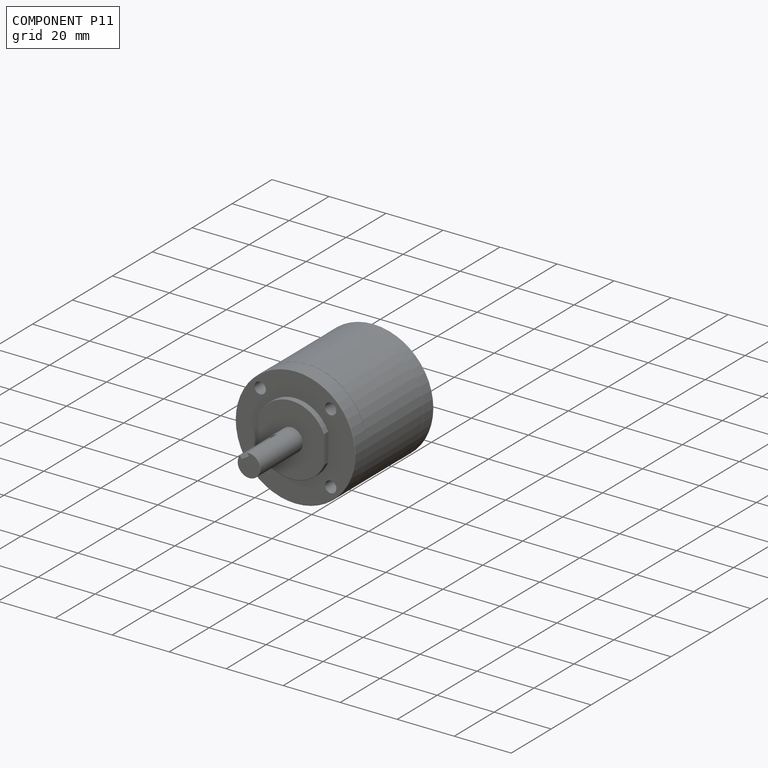
[diagram: component P11 — assembled]
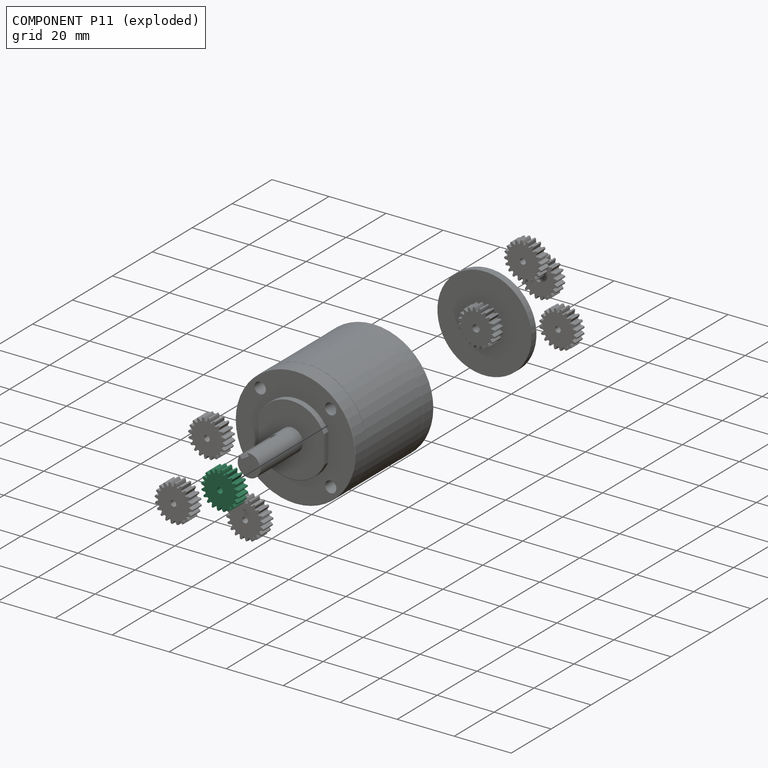
[diagram: component P11 — exploded]
COMPONENT P11 — same part as P0 (CADFS 00178052); its construction recipe is shown at P0.
Held by: PLANAR mate "Planar 1" to P9; REVOLUTE mate "Revolute 3" to P1.
